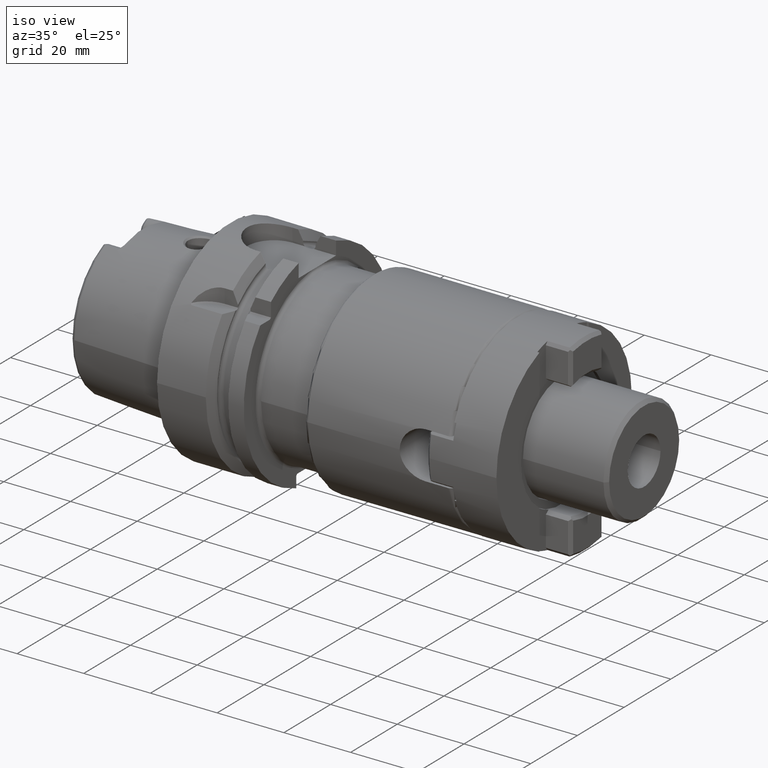
[diagram: clean part render]
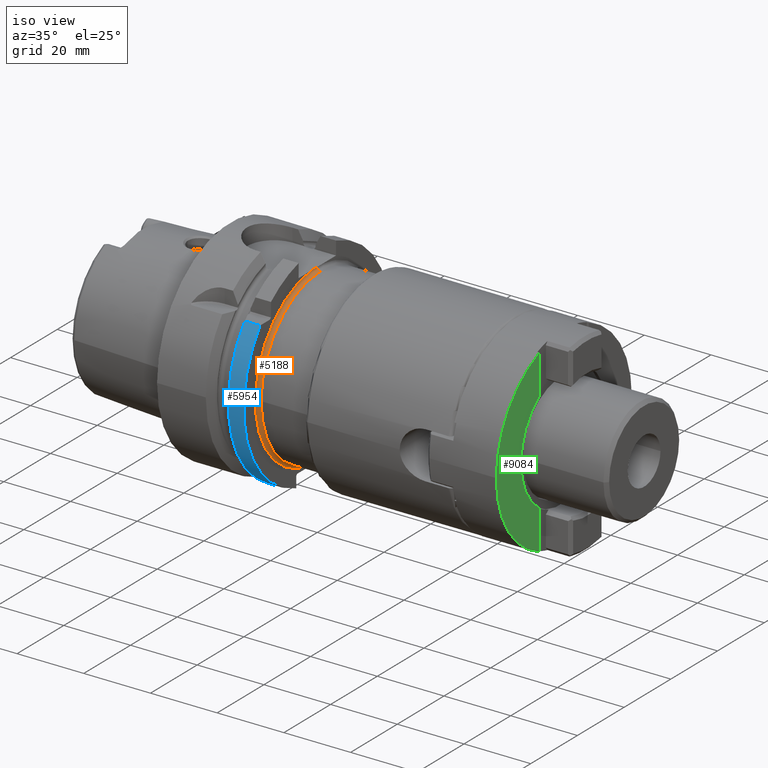
[diagram: same view with three faces highlighted in distinct colors, each labeled with its STEP entity id]
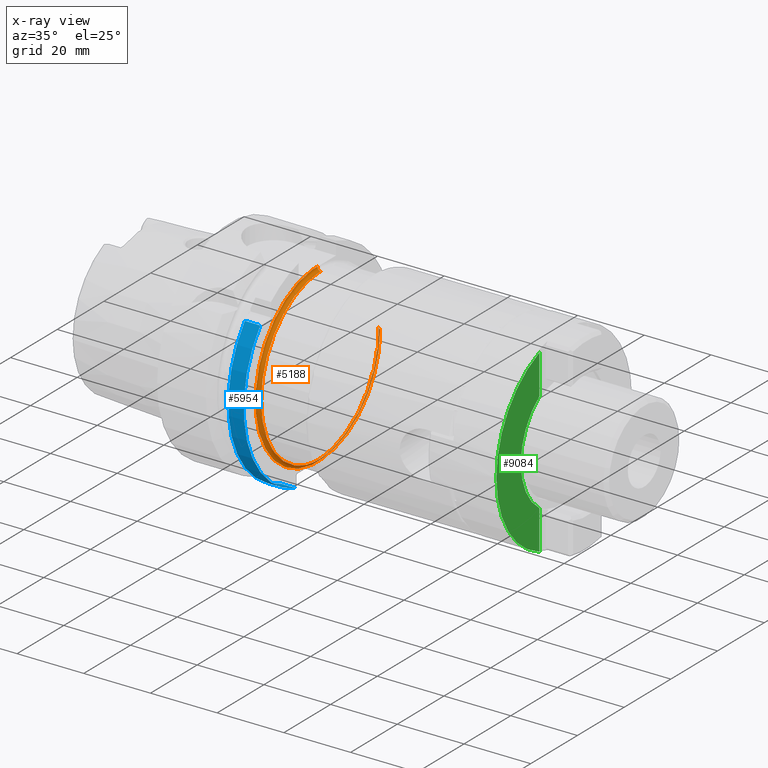
[diagram: x-ray of the same camera — body ghosted, the three highlighted faces saturated]
A machine part, iso view with three faces highlighted in distinct colors.
The next image is the same camera in x-ray (body ghosted, the three faces saturated) — at least one of them is partly hidden behind the body in this view.
Their STEP definitions:

[orange] entity #5188 — the highlighted toroidal blend (fillet) surface has major radius 26.5 mm and minor (blend) radius 1 mm.
#1387=CARTESIAN_POINT('',(2.6E1,0.E0,0.E0));
#1388=DIRECTION('',(-1.E0,0.E0,0.E0));
#1389=DIRECTION('',(0.E0,1.E0,0.E0));
#1390=AXIS2_PLACEMENT_3D('',#1387,#1388,#1389);
#1421=CARTESIAN_POINT('',(2.7E1,0.E0,0.E0));
#1422=DIRECTION('',(1.E0,0.E0,0.E0));
#1423=DIRECTION('',(0.E0,-1.E0,0.E0));
#1424=AXIS2_PLACEMENT_3D('',#1421,#1422,#1423);
#1426=CARTESIAN_POINT('',(2.7E1,2.65E1,3.304870266341E-12));
#1427=DIRECTION('',(0.E0,1.247118727732E-13,-1.E0));
#1428=DIRECTION('',(0.E0,-1.E0,-1.247118727732E-13));
#1429=AXIS2_PLACEMENT_3D('',#1426,#1427,#1428);
#1431=CARTESIAN_POINT('',(2.6E1,2.299997325709E0,-2.640000034920E1));
#1432=CARTESIAN_POINT('',(2.6E1,1.787724287745E0,-2.640000034920E1));
#1433=CARTESIAN_POINT('',(2.600528050729E1,7.640300752543E-1,
-2.639999988076E1));
#1434=CARTESIAN_POINT('',(2.600528050713E1,-7.640300416915E-1,
-2.639999989353E1));
#1435=CARTESIAN_POINT('',(2.6E1,-1.787724486295E0,-2.640000032793E1));
#1436=CARTESIAN_POINT('',(2.6E1,-2.299997512026E0,-2.640000032793E1));
#1438=CARTESIAN_POINT('',(2.6E1,0.E0,0.E0));
#1439=DIRECTION('',(-1.E0,0.E0,0.E0));
#1440=DIRECTION('',(0.E0,-8.679259620960E-2,-9.962264026029E-1));
#1441=AXIS2_PLACEMENT_3D('',#1438,#1439,#1440);
#1443=CARTESIAN_POINT('',(2.600501256289E1,3.506690181063E-6,2.64E1));
#1444=CARTESIAN_POINT('',(2.600501256631E1,-2.558961862291E-1,2.64E1));
#1445=CARTESIAN_POINT('',(2.600422308870E1,-7.674895426057E-1,
2.640000004669E1));
#1446=CARTESIAN_POINT('',(2.600142488274E1,-1.536177968735E0,2.639999983660E1));
#1447=CARTESIAN_POINT('',(2.6E1,-2.045670299145E0,2.640000035015E1));
#1448=CARTESIAN_POINT('',(2.6E1,-2.299997341214E0,2.640000035015E1));
#1468=CARTESIAN_POINT('',(2.7E1,0.E0,0.E0));
#1469=DIRECTION('',(-1.E0,0.E0,0.E0));
#1470=DIRECTION('',(0.E0,-1.E0,0.E0));
#1471=AXIS2_PLACEMENT_3D('',#1468,#1469,#1470);
#1950=CARTESIAN_POINT('',(2.7E1,3.522391158514E-6,2.65E1));
#1951=DIRECTION('',(0.E0,1.E0,-1.329204210761E-7));
#1952=DIRECTION('',(0.E0,-1.329204210761E-7,-1.E0));
#1953=AXIS2_PLACEMENT_3D('',#1950,#1951,#1952);
#3578=CARTESIAN_POINT('',(2.6E1,2.65E1,0.E0));
#3579=CARTESIAN_POINT('',(2.6E1,2.300003971726E0,-2.639999965398E1));
#3580=VERTEX_POINT('',#3578);
#3581=VERTEX_POINT('',#3579);
#3584=CARTESIAN_POINT('',(2.7E1,-1.899451039352E-6,2.55E1));
#3585=CARTESIAN_POINT('',(2.7E1,2.55E1,0.E0));
#3586=VERTEX_POINT('',#3584);
#3587=VERTEX_POINT('',#3585);
#3588=CARTESIAN_POINT('',(2.7E1,-2.55E1,0.E0));
#3589=VERTEX_POINT('',#3588);
#3590=CARTESIAN_POINT('',(2.6E1,-2.299997341214E0,2.640000035015E1));
#3591=VERTEX_POINT('',#3590);
#3592=CARTESIAN_POINT('',(2.6E1,-2.299997512026E0,-2.640000032793E1));
#3593=VERTEX_POINT('',#3592);
#3594=CARTESIAN_POINT('',(2.600501256289E1,3.509099116407E-6,2.64E1));
#3595=VERTEX_POINT('',#3594);
#5168=CARTESIAN_POINT('',(2.7E1,0.E0,0.E0));
#5169=DIRECTION('',(1.E0,0.E0,0.E0));
#5170=DIRECTION('',(0.E0,-9.999957977319E-1,-2.899054762654E-3));
#5171=AXIS2_PLACEMENT_3D('',#5168,#5169,#5170);
#5172=TOROIDAL_SURFACE('',#5171,2.65E1,1.E0);
#5174=ORIENTED_EDGE('',*,*,#5173,.T.);
#5176=ORIENTED_EDGE('',*,*,#5175,.T.);
#5177=ORIENTED_EDGE('',*,*,#5122,.T.);
#5178=ORIENTED_EDGE('',*,*,#5093,.T.);
#5179=ORIENTED_EDGE('',*,*,#5144,.T.);
#5181=ORIENTED_EDGE('',*,*,#5180,.F.);
#5183=ORIENTED_EDGE('',*,*,#5182,.F.);
#5185=ORIENTED_EDGE('',*,*,#5184,.F.);
#5186=EDGE_LOOP('',(#5174,#5176,#5177,#5178,#5179,#5181,#5183,#5185));
#5187=FACE_OUTER_BOUND('',#5186,.F.);
#5188=ADVANCED_FACE('',(#5187),#5172,.F.);
#1391=CIRCLE('',#1390,2.65E1);
#1425=CIRCLE('',#1424,2.55E1);
#1430=CIRCLE('',#1429,1.E0);
#1437=B_SPLINE_CURVE_WITH_KNOTS('',3,(#1431,#1432,#1433,#1434,#1435,#1436),
.UNSPECIFIED.,.F.,.F.,(4,1,1,4),(0.E0,3.333333333333E-1,6.666666666667E-1,1.E0),
.UNSPECIFIED.);
#1442=CIRCLE('',#1441,2.65E1);
#1449=B_SPLINE_CURVE_WITH_KNOTS('',3,(#1443,#1444,#1445,#1446,#1447,#1448),
.UNSPECIFIED.,.F.,.F.,(4,1,1,4),(0.E0,3.333333333333E-1,6.666666666667E-1,1.E0),
.UNSPECIFIED.);
#1472=CIRCLE('',#1471,2.55E1);
#1954=CIRCLE('',#1953,1.E0);
#5093=EDGE_CURVE('',#3581,#3593,#1437,.T.);
#5122=EDGE_CURVE('',#3580,#3581,#1391,.T.);
#5144=EDGE_CURVE('',#3593,#3591,#1442,.T.);
#5173=EDGE_CURVE('',#3589,#3587,#1425,.T.);
#5175=EDGE_CURVE('',#3587,#3580,#1430,.T.);
#5180=EDGE_CURVE('',#3595,#3591,#1449,.T.);
#5182=EDGE_CURVE('',#3586,#3595,#1954,.T.);
#5184=EDGE_CURVE('',#3589,#3586,#1472,.T.);

[blue] entity #5954 — the highlighted cylindrical surface (partial cylindrical patch) has radius 31.5 mm, axis along (1, 0, 0).
#2093=DIRECTION('',(1.E0,0.E0,0.E0));
#2094=VECTOR('',#2093,4.622500925241E0);
#2095=CARTESIAN_POINT('',(2.137749907476E1,-2.445868966237E1,1.985E1));
#2096=LINE('',#2095,#2094);
#2097=CARTESIAN_POINT('',(2.6E1,0.E0,0.E0));
#2098=DIRECTION('',(1.E0,0.E0,0.E0));
#2099=DIRECTION('',(0.E0,-7.764663384879E-1,6.301587301587E-1));
#2100=AXIS2_PLACEMENT_3D('',#2097,#2098,#2099);
#2230=CARTESIAN_POINT('',(2.137749907476E1,0.E0,0.E0));
#2231=DIRECTION('',(1.E0,0.E0,0.E0));
#2232=DIRECTION('',(0.E0,-7.764663384879E-1,6.301587301587E-1));
#2233=AXIS2_PLACEMENT_3D('',#2230,#2231,#2232);
#2240=CARTESIAN_POINT('',(2.137749907476E1,-9.0175E0,-3.018169467989E1));
#2485=DIRECTION('',(1.E0,0.E0,0.E0));
#2486=VECTOR('',#2485,4.622500925241E0);
#2487=CARTESIAN_POINT('',(2.137749907476E1,-9.0175E0,-3.018169467989E1));
#2488=LINE('',#2487,#2486);
#3445=VERTEX_POINT('',#2240);
#3452=CARTESIAN_POINT('',(2.137749907476E1,-2.445868966237E1,1.985E1));
#3453=CARTESIAN_POINT('',(2.6E1,-2.445868966237E1,1.985E1));
#3454=VERTEX_POINT('',#3452);
#3455=VERTEX_POINT('',#3453);
#3479=CARTESIAN_POINT('',(2.6E1,-9.0175E0,-3.018169467989E1));
#3480=VERTEX_POINT('',#3479);
#5940=CARTESIAN_POINT('',(-3.49E1,0.E0,0.E0));
#5941=DIRECTION('',(1.E0,0.E0,0.E0));
#5942=DIRECTION('',(0.E0,-1.E0,0.E0));
#5943=AXIS2_PLACEMENT_3D('',#5940,#5941,#5942);
#5944=CYLINDRICAL_SURFACE('',#5943,3.15E1);
#5946=ORIENTED_EDGE('',*,*,#5945,.T.);
#5947=ORIENTED_EDGE('',*,*,#5151,.T.);
#5949=ORIENTED_EDGE('',*,*,#5948,.F.);
#5951=ORIENTED_EDGE('',*,*,#5950,.F.);
#5952=EDGE_LOOP('',(#5946,#5947,#5949,#5951));
#5953=FACE_OUTER_BOUND('',#5952,.F.);
#5954=ADVANCED_FACE('',(#5953),#5944,.T.);
#2101=CIRCLE('',#2100,3.15E1);
#2234=CIRCLE('',#2233,3.15E1);
#5151=EDGE_CURVE('',#3455,#3480,#2101,.T.);
#5945=EDGE_CURVE('',#3454,#3455,#2096,.T.);
#5948=EDGE_CURVE('',#3445,#3480,#2488,.T.);
#5950=EDGE_CURVE('',#3454,#3445,#2234,.T.);

[green] entity #9084 — the highlighted planar face has unit normal (-1, 0, 0).
#7531=CARTESIAN_POINT('',(0.E0,1.4E1,0.E0));
#7532=DIRECTION('',(0.E0,1.E0,0.E0));
#7533=DIRECTION('',(-3.645689655172E-1,0.E0,-9.311763900474E-1));
#7534=AXIS2_PLACEMENT_3D('',#7531,#7532,#7533);
#7760=CARTESIAN_POINT('',(0.E0,1.4E1,0.E0));
#7761=DIRECTION('',(0.E0,1.E0,0.E0));
#7762=DIRECTION('',(-1.E0,0.E0,0.E0));
#7763=AXIS2_PLACEMENT_3D('',#7760,#7761,#7762);
#7808=CARTESIAN_POINT('',(0.E0,1.4E1,0.E0));
#7809=DIRECTION('',(0.E0,1.E0,0.E0));
#7810=DIRECTION('',(-1.E0,0.E0,0.E0));
#7811=AXIS2_PLACEMENT_3D('',#7808,#7809,#7810);
#7813=CARTESIAN_POINT('',(0.E0,1.4E1,0.E0));
#7814=DIRECTION('',(0.E0,1.E0,0.E0));
#7815=DIRECTION('',(-5.714864864865E-1,0.E0,-8.206114767436E-1));
#7816=AXIS2_PLACEMENT_3D('',#7813,#7814,#7815);
#8109=DIRECTION('',(0.E0,0.E0,1.E0));
#8110=VECTOR('',#8109,1.182280299162E1);
#8111=CARTESIAN_POINT('',(-1.05725E1,1.4E1,1.518131231976E1));
#8112=LINE('',#8111,#8110);
#8117=DIRECTION('',(0.E0,0.E0,1.E0));
#8118=VECTOR('',#8117,1.182280299162E1);
#8119=CARTESIAN_POINT('',(-1.05725E1,1.4E1,-2.700411531137E1));
#8120=LINE('',#8119,#8118);
#8418=CARTESIAN_POINT('',(-1.05725E1,1.4E1,-2.700411531137E1));
#8419=CARTESIAN_POINT('',(-2.9E1,1.4E1,0.E0));
#8420=VERTEX_POINT('',#8418);
#8421=VERTEX_POINT('',#8419);
#8424=CARTESIAN_POINT('',(-1.05725E1,1.4E1,2.700411531137E1));
#8425=VERTEX_POINT('',#8424);
#8440=CARTESIAN_POINT('',(-1.85E1,1.4E1,0.E0));
#8441=CARTESIAN_POINT('',(-1.05725E1,1.4E1,1.518131231976E1));
#8442=VERTEX_POINT('',#8440);
#8443=VERTEX_POINT('',#8441);
#8444=CARTESIAN_POINT('',(-1.05725E1,1.4E1,-1.518131231976E1));
#8445=VERTEX_POINT('',#8444);
#9067=CARTESIAN_POINT('',(-2.9E1,1.4E1,-3.482917893342E1));
#9068=DIRECTION('',(0.E0,-1.E0,0.E0));
#9069=DIRECTION('',(1.E0,0.E0,0.E0));
#9070=AXIS2_PLACEMENT_3D('',#9067,#9068,#9069);
#9071=PLANE('',#9070);
#9073=ORIENTED_EDGE('',*,*,#9072,.T.);
#9075=ORIENTED_EDGE('',*,*,#9074,.T.);
#9076=ORIENTED_EDGE('',*,*,#9031,.F.);
#9077=ORIENTED_EDGE('',*,*,#8788,.F.);
#9079=ORIENTED_EDGE('',*,*,#9078,.T.);
#9081=ORIENTED_EDGE('',*,*,#9080,.T.);
#9082=EDGE_LOOP('',(#9073,#9075,#9076,#9077,#9079,#9081));
#9083=FACE_OUTER_BOUND('',#9082,.F.);
#9084=ADVANCED_FACE('',(#9083),#9071,.F.);
#7535=CIRCLE('',#7534,2.9E1);
#7764=CIRCLE('',#7763,2.9E1);
#7812=CIRCLE('',#7811,1.85E1);
#7817=CIRCLE('',#7816,1.85E1);
#8788=EDGE_CURVE('',#8420,#8421,#7535,.T.);
#9031=EDGE_CURVE('',#8421,#8425,#7764,.T.);
#9072=EDGE_CURVE('',#8442,#8443,#7812,.T.);
#9074=EDGE_CURVE('',#8443,#8425,#8112,.T.);
#9078=EDGE_CURVE('',#8420,#8445,#8120,.T.);
#9080=EDGE_CURVE('',#8445,#8442,#7817,.T.);